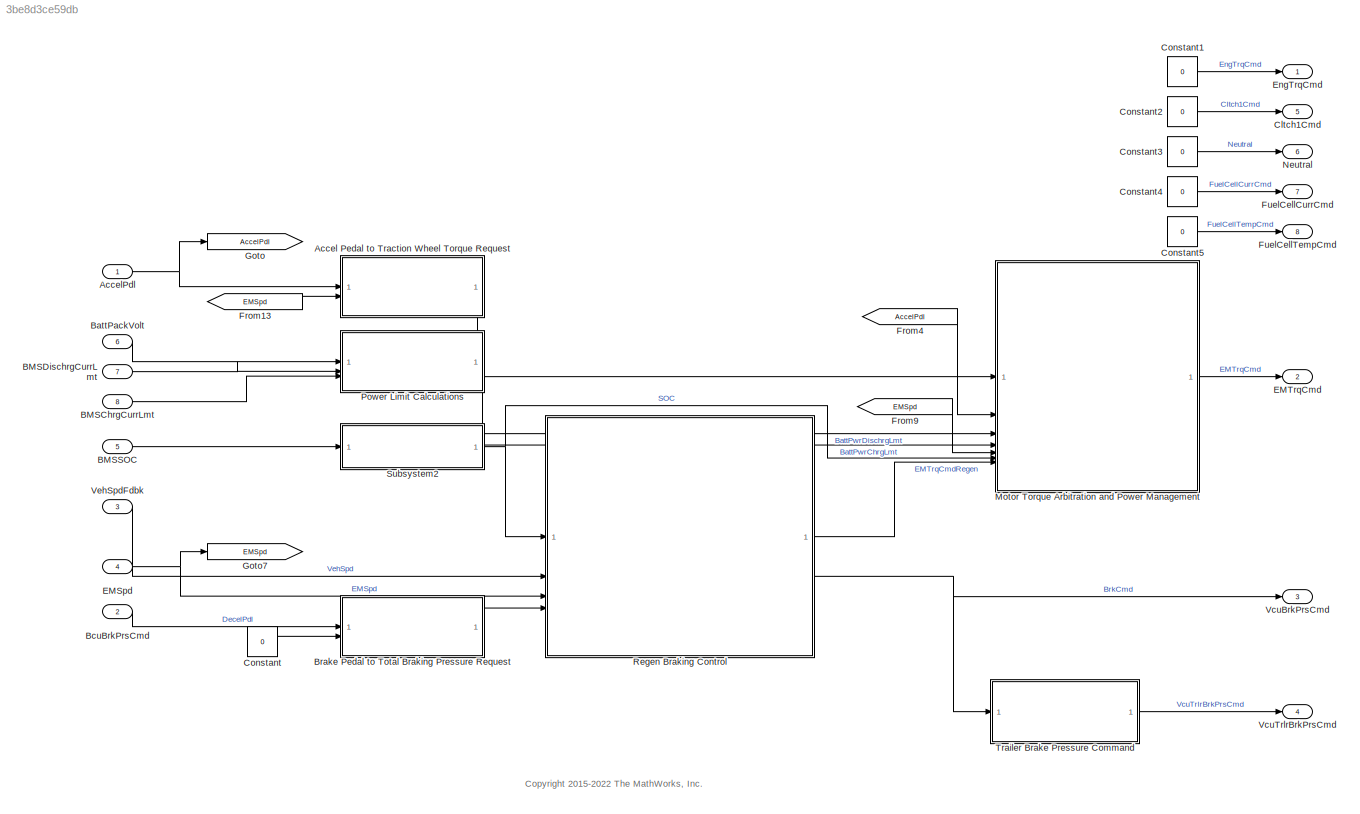
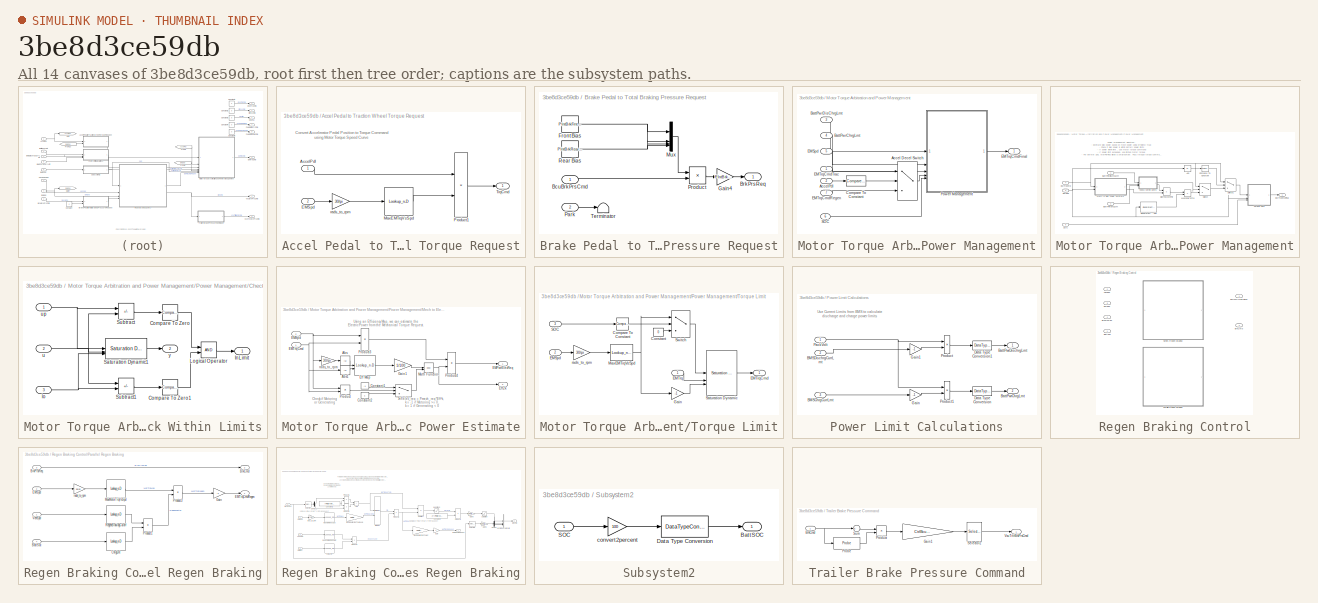
[diagram: thumbnail index - all 14 canvases of the model, root first then tree order]
MODEL slx_3be8d3ce59db
KIND model
BLOCK [SubSystem] Accel Pedal to Traction Wheel Torque Request
  InitFcn = [~]=autosharedicon('autolibinternalvvblock',gcb,0,'6');
BLOCK [Inport] Accel Pedal to Traction Wheel Torque Request/AccelPdl
BLOCK [Inport] Accel Pedal to Traction Wheel Torque Request/EMSpd
  Port = 2
BLOCK [Lookup_n-D] Accel Pedal to Traction Wheel Torque Request/MaxEMTrqVsSpd
  BreakpointsForDimension1 = PlntEM1Spd*30/pi
  ExtrapMethod = Clip
  InputPortMap = u0
  InternalRulePriority = Speed
  NumberOfTableDimensions = 1
  OutDataTypeStr = Inherit: Inherit from 'Table data'
  RndMeth = Simplest
  Table = PlntEM1Trq
  UseLastTableValue = on
BLOCK [Product] Accel Pedal to Traction Wheel Torque Request/Product1
BLOCK [Outport] Accel Pedal to Traction Wheel Torque Request/TrqCmd
  VectorParamsAs1DForOutWhenUnconnected = off
BLOCK [Gain] Accel Pedal to Traction Wheel Torque Request/rads_to_rpm
  Gain = 30/pi
BLOCK [Inport] AccelPdl
  OutDataTypeStr = double
  PortDimensions = 1
BLOCK [Inport] BMSChrgCurrLmt
  Port = 8
BLOCK [Inport] BMSDischrgCurrLmt
  Port = 7
BLOCK [Inport] BMSSOC
  Port = 5
BLOCK [Inport] BattPackVolt
  Port = 6
BLOCK [Inport] BcuBrkPrsCmd
  OutDataTypeStr = double
  Port = 2
  PortDimensions = 4
BLOCK [SubSystem] Brake Pedal to Total Braking Pressure Request
BLOCK [Inport] Brake Pedal to Total Braking Pressure Request/BcuBrkPrsCmd
BLOCK [Outport] Brake Pedal to Total Braking Pressure Request/BrkPrsReq
  VectorParamsAs1DForOutWhenUnconnected = off
BLOCK [Constant] Brake Pedal to Total Braking Pressure Request/Front Bias
  NameLocation = top
  Value = PlntBrkFrntBias
BLOCK [Gain] Brake Pedal to Total Braking Pressure Request/Gain4
  Gain = PlntBrkPrsFctr
BLOCK [Mux] Brake Pedal to Total Braking Pressure Request/Mux
  DisplayOption = bar
BLOCK [Inport] Brake Pedal to Total Braking Pressure Request/Park
  Port = 2
BLOCK [Product] Brake Pedal to Total Braking Pressure Request/Product
BLOCK [Constant] Brake Pedal to Total Braking Pressure Request/Rear Bias
  Value = PlntBrkRearBias
BLOCK [Terminator] Brake Pedal to Total Braking Pressure Request/Terminator
BLOCK [Outport] Cltch1Cmd
  OutDataTypeStr = double
  Port = 5
  PortDimensions = 1
  SamplingMode = Sample based
  SignalType = real
  VectorParamsAs1DForOutWhenUnconnected = off
BLOCK [Constant] Constant
  Value = 0
BLOCK [Constant] Constant1
  SampleTime = -1
  Value = 0
BLOCK [Constant] Constant2
  SampleTime = -1
  Value = 0
BLOCK [Constant] Constant3
  SampleTime = -1
  Value = 0
BLOCK [Constant] Constant4
  SampleTime = -1
  Value = 0
BLOCK [Constant] Constant5
  SampleTime = -1
  Value = 0
BLOCK [Inport] EMSpd
  OutDataTypeStr = double
  Port = 4
  PortDimensions = 1
BLOCK [Outport] EMTrqCmd
  OutDataTypeStr = double
  Port = 2
  PortDimensions = 1
  VectorParamsAs1DForOutWhenUnconnected = off
BLOCK [Outport] EngTrqCmd
  OutDataTypeStr = double
  PortDimensions = 1
  SamplingMode = Sample based
  SignalType = real
  VectorParamsAs1DForOutWhenUnconnected = off
BLOCK [From] From13
  GotoTag = EMSpd
BLOCK [From] From4
  GotoTag = AccelPdl
BLOCK [From] From9
  GotoTag = EMSpd
BLOCK [Outport] FuelCellCurrCmd
  OutDataTypeStr = double
  Port = 7
  PortDimensions = 1
BLOCK [Outport] FuelCellTempCmd
  OutDataTypeStr = double
  Port = 8
  PortDimensions = 1
BLOCK [Goto] Goto
  GotoTag = AccelPdl
BLOCK [Goto] Goto7
  GotoTag = EMSpd
BLOCK [SubSystem] Motor Torque Arbitration and Power Management
BLOCK [Switch] Motor Torque Arbitration and Power Management/Accel Decel Switch
  Criteria = u2 > Threshold
  InputSameDT = off
  SaturateOnIntegerOverflow = off
BLOCK [Inport] Motor Torque Arbitration and Power Management/AccelPdl
  Port = 2
BLOCK [Inport] Motor Torque Arbitration and Power Management/BattPwrChrgLmt 
  Port = 4
BLOCK [Inport] Motor Torque Arbitration and Power Management/BattPwrDisChrgLmt
  Port = 3
BLOCK [Reference] Motor Torque Arbitration and Power Management/Compare To Constant  REF=simulink/Logic and Bit
Operations/Compare
To Constant
  SourceBlock = simulink/Logic and Bit\nOperations/Compare\nTo Constant
  SourceType = Compare To Constant
BLOCK [Inport] Motor Torque Arbitration and Power Management/EMSpd
  Port = 5
BLOCK [Outport] Motor Torque Arbitration and Power Management/EMTrqCmdFinal
  VectorParamsAs1DForOutWhenUnconnected = off
BLOCK [Inport] Motor Torque Arbitration and Power Management/EMTrqCmdRegen
  Port = 7
BLOCK [Inport] Motor Torque Arbitration and Power Management/EMTrqCmdTrac
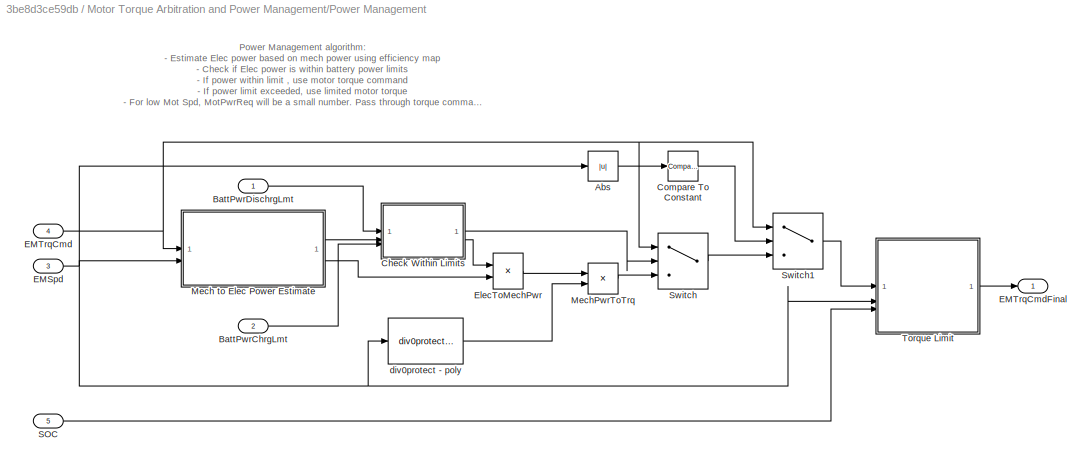
BLOCK [SubSystem] Motor Torque Arbitration and Power Management/Power Management
BLOCK [Abs] Motor Torque Arbitration and Power Management/Power Management/Abs
  SaturateOnIntegerOverflow = off
BLOCK [Inport] Motor Torque Arbitration and Power Management/Power Management/BattPwrChrgLmt
  Port = 2
BLOCK [Inport] Motor Torque Arbitration and Power Management/Power Management/BattPwrDischrgLmt
BLOCK [SubSystem] Motor Torque Arbitration and Power Management/Power Management/Check Within Limits
BLOCK [Reference] Motor Torque Arbitration and Power Management/Power Management/Check Within Limits/Compare To Zero  REF=simulink/Logic and Bit
Operations/Compare
To Zero
  SourceBlock = simulink/Logic and Bit\nOperations/Compare\nTo Zero
  SourceType = Compare To Zero
BLOCK [Reference] Motor Torque Arbitration and Power Management/Power Management/Check Within Limits/Compare To Zero1  REF=simulink/Logic and Bit
Operations/Compare
To Zero
  SourceBlock = simulink/Logic and Bit\nOperations/Compare\nTo Zero
  SourceType = Compare To Zero
BLOCK [Outport] Motor Torque Arbitration and Power Management/Power Management/Check Within Limits/InLimit
  VectorParamsAs1DForOutWhenUnconnected = off
BLOCK [Logic] Motor Torque Arbitration and Power Management/Power Management/Check Within Limits/Logical Operator
  AllPortsSameDT = off
  OutDataTypeStr = boolean
BLOCK [Reference] Motor Torque Arbitration and Power Management/Power Management/Check Within Limits/Saturation Dynamic1  REF=simulink/Discontinuities/Saturation
Dynamic
  SourceBlock = simulink/Discontinuities/Saturation\nDynamic
  SourceType = Saturation Dynamic
BLOCK [Sum] Motor Torque Arbitration and Power Management/Power Management/Check Within Limits/Subtract
  IconShape = rectangular
  Inputs = +-
BLOCK [Sum] Motor Torque Arbitration and Power Management/Power Management/Check Within Limits/Subtract1
  IconShape = rectangular
  Inputs = -+
BLOCK [Inport] Motor Torque Arbitration and Power Management/Power Management/Check Within Limits/lo
  Port = 3
BLOCK [Inport] Motor Torque Arbitration and Power Management/Power Management/Check Within Limits/u
  Port = 2
BLOCK [Inport] Motor Torque Arbitration and Power Management/Power Management/Check Within Limits/up
BLOCK [Outport] Motor Torque Arbitration and Power Management/Power Management/Check Within Limits/y
  Port = 2
  VectorParamsAs1DForOutWhenUnconnected = off
BLOCK [Reference] Motor Torque Arbitration and Power Management/Power Management/Compare To Constant  REF=simulink/Logic and Bit
Operations/Compare
To Constant
  SourceBlock = simulink/Logic and Bit\nOperations/Compare\nTo Constant
  SourceType = Compare To Constant
BLOCK [Inport] Motor Torque Arbitration and Power Management/Power Management/EMSpd
  Port = 3
BLOCK [Inport] Motor Torque Arbitration and Power Management/Power Management/EMTrqCmd
  Port = 4
BLOCK [Outport] Motor Torque Arbitration and Power Management/Power Management/EMTrqCmdFinal
  VectorParamsAs1DForOutWhenUnconnected = off
BLOCK [Product] Motor Torque Arbitration and Power Management/Power Management/ElecToMechPwr
  Inputs = */
BLOCK [SubSystem] Motor Torque Arbitration and Power Management/Power Management/Mech to Elec Power Estimate
BLOCK [Abs] Motor Torque Arbitration and Power Management/Power Management/Mech to Elec Power Estimate/Abs
  SaturateOnIntegerOverflow = off
BLOCK [Abs] Motor Torque Arbitration and Power Management/Power Management/Mech to Elec Power Estimate/Abs1
  SaturateOnIntegerOverflow = off
BLOCK [Constant] Motor Torque Arbitration and Power Management/Power Management/Mech to Elec Power Estimate/Constant1
  SampleTime = -1
  Value = -1
BLOCK [Constant] Motor Torque Arbitration and Power Management/Power Management/Mech to Elec Power Estimate/Constant2
  SampleTime = -1
BLOCK [Outport] Motor Torque Arbitration and Power Management/Power Management/Mech to Elec Power Estimate/EMPwrElecReq
  VectorParamsAs1DForOutWhenUnconnected = off
BLOCK [Inport] Motor Torque Arbitration and Power Management/Power Management/Mech to Elec Power Estimate/EMSpd
  Port = 2
BLOCK [Inport] Motor Torque Arbitration and Power Management/Power Management/Mech to Elec Power Estimate/EMTrqCmd
BLOCK [Lookup_n-D] Motor Torque Arbitration and Power Management/Power Management/Mech to Elec Power Estimate/Eff Map
  BreakpointsForDimension1 = PlntEM1SpdEff*30/pi
  BreakpointsForDimension2 = PlntEM1TrqEff
  ExtrapMethod = Clip
  InputPortMap = u0,u1
  InternalRulePriority = Speed
  OutDataTypeStr = Inherit: Inherit from 'Table data'
  RndMeth = Simplest
  Table = PlntEM1EffTbl
  UseLastTableValue = on
BLOCK [Outport] Motor Torque Arbitration and Power Management/Power Management/Mech to Elec Power Estimate/Eff2k
  Port = 2
  VectorParamsAs1DForOutWhenUnconnected = off
BLOCK [Gain] Motor Torque Arbitration and Power Management/Power Management/Mech to Elec Power Estimate/Gain1
  Gain = 1/100
BLOCK [Math] Motor Torque Arbitration and Power Management/Power Management/Mech to Elec Power Estimate/Math Function
  Operator = pow
  OutputSignalType = real
  SignedPower = on
BLOCK [Product] Motor Torque Arbitration and Power Management/Power Management/Mech to Elec Power Estimate/Product
BLOCK [Product] Motor Torque Arbitration and Power Management/Power Management/Mech to Elec Power Estimate/Product3
BLOCK [Product] Motor Torque Arbitration and Power Management/Power Management/Mech to Elec Power Estimate/Product4
BLOCK [Switch] Motor Torque Arbitration and Power Management/Power Management/Mech to Elec Power Estimate/Switch2
  InputSameDT = off
  SaturateOnIntegerOverflow = off
BLOCK [Gain] Motor Torque Arbitration and Power Management/Power Management/Mech to Elec Power Estimate/rads_to_rpm
  Gain = 30/pi
  NameLocation = top
BLOCK [Product] Motor Torque Arbitration and Power Management/Power Management/MechPwrToTrq
  Inputs = */
BLOCK [Inport] Motor Torque Arbitration and Power Management/Power Management/SOC
  Port = 5
BLOCK [Switch] Motor Torque Arbitration and Power Management/Power Management/Switch
  Criteria = u2 > Threshold
  InputSameDT = off
  SaturateOnIntegerOverflow = off
BLOCK [Switch] Motor Torque Arbitration and Power Management/Power Management/Switch1
  Criteria = u2 > Threshold
  InputSameDT = off
  SaturateOnIntegerOverflow = off
BLOCK [SubSystem] Motor Torque Arbitration and Power Management/Power Management/Torque Limit
BLOCK [Reference] Motor Torque Arbitration and Power Management/Power Management/Torque Limit/Compare To Constant  REF=simulink/Logic and Bit
Operations/Compare
To Constant
  SourceBlock = simulink/Logic and Bit\nOperations/Compare\nTo Constant
  SourceType = Compare To Constant
BLOCK [Constant] Motor Torque Arbitration and Power Management/Power Management/Torque Limit/Constant
  Value = 0
BLOCK [Inport] Motor Torque Arbitration and Power Management/Power Management/Torque Limit/EMSpd
  Port = 2
BLOCK [Inport] Motor Torque Arbitration and Power Management/Power Management/Torque Limit/EMTrq
BLOCK [Outport] Motor Torque Arbitration and Power Management/Power Management/Torque Limit/EMTrqCmd
  VectorParamsAs1DForOutWhenUnconnected = off
BLOCK [Gain] Motor Torque Arbitration and Power Management/Power Management/Torque Limit/Gain
  Gain = -1
BLOCK [Lookup_n-D] Motor Torque Arbitration and Power Management/Power Management/Torque Limit/MaxEMTrqVsSpd
  BreakpointsForDimension1 = PlntEM1Spd*30/pi
  ExtrapMethod = Clip
  InputPortMap = u0
  InternalRulePriority = Speed
  NumberOfTableDimensions = 1
  OutDataTypeStr = Inherit: Inherit from 'Table data'
  RndMeth = Simplest
  Table = PlntEM1Trq
  UseLastTableValue = on
BLOCK [Inport] Motor Torque Arbitration and Power Management/Power Management/Torque Limit/SOC
  Port = 3
BLOCK [Reference] Motor Torque Arbitration and Power Management/Power Management/Torque Limit/Saturation Dynamic  REF=simulink/Discontinuities/Saturation
Dynamic
  SourceBlock = simulink/Discontinuities/Saturation\nDynamic
  SourceType = Saturation Dynamic
BLOCK [Switch] Motor Torque Arbitration and Power Management/Power Management/Torque Limit/Switch
  Criteria = u2 > Threshold
  InputSameDT = off
  SaturateOnIntegerOverflow = off
BLOCK [Gain] Motor Torque Arbitration and Power Management/Power Management/Torque Limit/rads_to_rpm
  Gain = 30/pi
BLOCK [Reference] Motor Torque Arbitration and Power Management/Power Management/div0protect - poly  REF=autolibutils/div0protect - poly
  SourceBlock = autolibutils/div0protect - poly
BLOCK [Inport] Motor Torque Arbitration and Power Management/SOC
  Port = 6
BLOCK [Outport] Neutral
  OutDataTypeStr = double
  Port = 6
  PortDimensions = 1
  SamplingMode = Sample based
  SignalType = real
  VectorParamsAs1DForOutWhenUnconnected = off
BLOCK [SubSystem] Power Limit Calculations
BLOCK [Inport] Power Limit Calculations/BMSChrgCurrLmt
  Port = 3
BLOCK [Inport] Power Limit Calculations/BMSDischrgCurrLmt
  Port = 2
BLOCK [Outport] Power Limit Calculations/BattPwrChrgLmt
  Port = 2
  VectorParamsAs1DForOutWhenUnconnected = off
BLOCK [Outport] Power Limit Calculations/BattPwrDischrgLmt
  VectorParamsAs1DForOutWhenUnconnected = off
BLOCK [DataTypeConversion] Power Limit Calculations/Data Type Conversion
  RndMeth = Floor
  SaturateOnIntegerOverflow = off
BLOCK [DataTypeConversion] Power Limit Calculations/Data Type Conversion1
  RndMeth = Floor
  SaturateOnIntegerOverflow = off
BLOCK [Gain] Power Limit Calculations/Gain
  Gain = -1
BLOCK [Gain] Power Limit Calculations/Gain1
  Gain = -1
BLOCK [Inport] Power Limit Calculations/PackVolt
BLOCK [Product] Power Limit Calculations/Product
BLOCK [Product] Power Limit Calculations/Product1
BLOCK [SubSystem] Regen Braking Control
  LabelModeActiveChoice = Variant
  LoadFcn = [~]=autosharedicon('autolibinternalvvblock',gcb,0,'6');
  Variant = on
  VariantControl = (default)
  VariantControlMode = label
BLOCK [Outport] Regen Braking Control/ BrkCmd
  Port = 2
  VectorParamsAs1DForOutWhenUnconnected = off
BLOCK [Outport] Regen Braking Control/ EMTrqCmdRegen
  VectorParamsAs1DForOutWhenUnconnected = off
BLOCK [Inport] Regen Braking Control/BattSoc 
BLOCK [Inport] Regen Braking Control/BrkPrsReq 
  Port = 4
BLOCK [Inport] Regen Braking Control/EMSpd 
  Port = 3
BLOCK [SubSystem] Regen Braking Control/Parallel Regen Braking
  InitFcn = [~]=autosharedicon('autolibinternalvvblock',gcb,0,'6');
  VariantControl = (default)
BLOCK [Outport] Regen Braking Control/Parallel Regen Braking/ BrkCmd
  Port = 2
  VectorParamsAs1DForOutWhenUnconnected = off
BLOCK [Outport] Regen Braking Control/Parallel Regen Braking/ EMTrqCmdRegen
  VectorParamsAs1DForOutWhenUnconnected = off
BLOCK [Inport] Regen Braking Control/Parallel Regen Braking/BattSoc
  Port = 4
BLOCK [Inport] Regen Braking Control/Parallel Regen Braking/BrkPrsReq 
  Port = 3
BLOCK [Lookup_n-D] Regen Braking Control/Parallel Regen Braking/ChrgLmt
  BreakpointsForDimension1 = CtrlVcuEvSocBpt
  ExtrapMethod = Clip
  InputPortMap = u0
  InternalRulePriority = Speed
  NumberOfTableDimensions = 1
  RndMeth = Simplest
  Table = CtrlVcuEvChrgLmtBpt
  UseLastTableValue = on
BLOCK [Inport] Regen Braking Control/Parallel Regen Braking/EMSpd 
  Port = 2
BLOCK [Gain] Regen Braking Control/Parallel Regen Braking/Gain
  Gain = -1
BLOCK [Lookup_n-D] Regen Braking Control/Parallel Regen Braking/MaxMotorTrqVsSpd
  BreakpointsForDimension1 = PlntEM1Spd*30/pi
  ExtrapMethod = Clip
  InputPortMap = u0
  InternalRulePriority = Speed
  NumberOfTableDimensions = 1
  OutDataTypeStr = Inherit: Inherit from 'Table data'
  RndMeth = Simplest
  Table = PlntEM1Trq
  UseLastTableValue = on
BLOCK [Product] Regen Braking Control/Parallel Regen Braking/Product1
BLOCK [Product] Regen Braking Control/Parallel Regen Braking/Product3
BLOCK [Lookup_n-D] Regen Braking Control/Parallel Regen Braking/RegenBrakingCutoff
  BreakpointsForDimension1 = CtrlVcuEvRegenBrkSpdBpt
  ExtrapMethod = Clip
  InputPortMap = u0
  InternalRulePriority = Speed
  NumberOfTableDimensions = 1
  RndMeth = Simplest
  Table = CtrlVcuEvRegenBrkCutOff
  UseLastTableValue = on
BLOCK [Inport] Regen Braking Control/Parallel Regen Braking/VehSpd
BLOCK [Gain] Regen Braking Control/Parallel Regen Braking/rads_to_rpm
  Gain = 30/pi
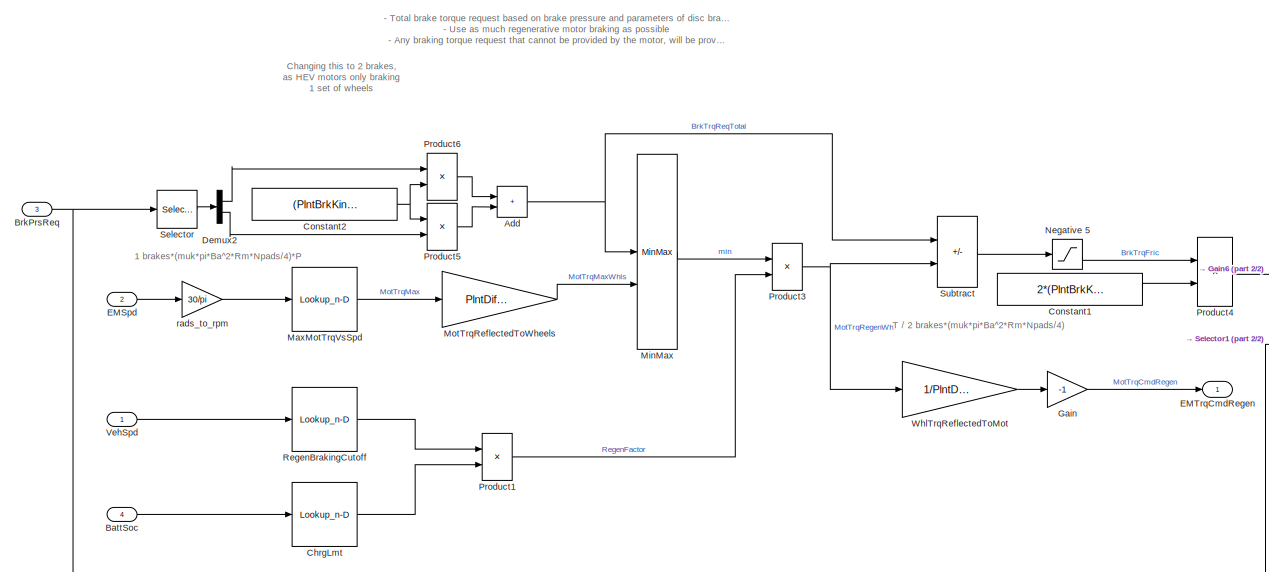
[diagram: Regen Braking Control/Series Regen Braking - part 1/2, most of the canvas]
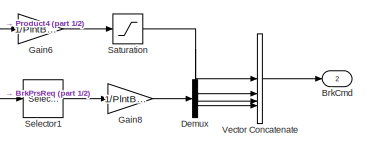
[diagram: Regen Braking Control/Series Regen Braking - part 2/2, middle right region]
BLOCK [SubSystem] Regen Braking Control/Series Regen Braking
  InitFcn = %[~]=autosharedicon('autolibinternalvvblock',gcb,0,'6');
  VariantControl = Variant
BLOCK [Outport] Regen Braking Control/Series Regen Braking/ BrkCmd
  Port = 2
  VectorParamsAs1DForOutWhenUnconnected = off
BLOCK [Outport] Regen Braking Control/Series Regen Braking/ EMTrqCmdRegen
  VectorParamsAs1DForOutWhenUnconnected = off
BLOCK [Sum] Regen Braking Control/Series Regen Braking/Add
  IconShape = rectangular
BLOCK [Inport] Regen Braking Control/Series Regen Braking/BattSoc
  Port = 4
BLOCK [Inport] Regen Braking Control/Series Regen Braking/BrkPrsReq 
  Port = 3
BLOCK [Lookup_n-D] Regen Braking Control/Series Regen Braking/ChrgLmt
  BreakpointsForDimension1 = CtrlVcuEvSocBpt
  ExtrapMethod = Clip
  InputPortMap = u0
  InternalRulePriority = Speed
  NumberOfTableDimensions = 1
  RndMeth = Simplest
  Table = CtrlVcuEvChrgLmtBpt
  UseLastTableValue = on
BLOCK [Constant] Regen Braking Control/Series Regen Braking/Constant1
  Value = 2*(PlntBrkKinFricCffFrnt*pi*PlntBrkActrBoreFrnt^2*PlntBrkPadMeanRadiusFrnt*PlntBrkNumPadsFrnt/4)
BLOCK [Constant] Regen Braking Control/Series Regen Braking/Constant2
  Value = (PlntBrkKinFricCffFrnt*pi*PlntBrkActrBoreFrnt^2*PlntBrkPadMeanRadiusFrnt*PlntBrkNumPadsFrnt/4)
BLOCK [Demux] Regen Braking Control/Series Regen Braking/Demux
  Outputs = 2
BLOCK [Demux] Regen Braking Control/Series Regen Braking/Demux2
  Outputs = 2
BLOCK [Inport] Regen Braking Control/Series Regen Braking/EMSpd 
  Port = 2
BLOCK [Gain] Regen Braking Control/Series Regen Braking/Gain
  Gain = -1
BLOCK [Gain] Regen Braking Control/Series Regen Braking/Gain6
  Gain = 1/PlntBrkPrsFctr
BLOCK [Gain] Regen Braking Control/Series Regen Braking/Gain8
  Gain = 1/PlntBrkPrsFctr
BLOCK [Lookup_n-D] Regen Braking Control/Series Regen Braking/MaxMotTrqVsSpd
  BreakpointsForDimension1 = PlntEM1Spd*30/pi
  ExtrapMethod = Clip
  InputPortMap = u0
  InternalRulePriority = Speed
  NumberOfTableDimensions = 1
  OutDataTypeStr = Inherit: Inherit from 'Table data'
  RndMeth = Simplest
  Table = PlntEM1Trq
  UseLastTableValue = on
BLOCK [MinMax] Regen Braking Control/Series Regen Braking/MinMax
  Inputs = 2
BLOCK [Gain] Regen Braking Control/Series Regen Braking/MotTrqReflectedToWheels
  Gain = PlntDiffrntlRatio
BLOCK [Saturate] Regen Braking Control/Series Regen Braking/Negative 5
  LowerLimit = 0
  UpperLimit = inf
BLOCK [Product] Regen Braking Control/Series Regen Braking/Product1
BLOCK [Product] Regen Braking Control/Series Regen Braking/Product3
BLOCK [Product] Regen Braking Control/Series Regen Braking/Product4
  Inputs = */
BLOCK [Product] Regen Braking Control/Series Regen Braking/Product5
BLOCK [Product] Regen Braking Control/Series Regen Braking/Product6
BLOCK [Lookup_n-D] Regen Braking Control/Series Regen Braking/RegenBrakingCutoff
  BreakpointsForDimension1 = CtrlVcuEvRegenBrkSpdBpt
  ExtrapMethod = Clip
  InputPortMap = u0
  InternalRulePriority = Speed
  NumberOfTableDimensions = 1
  RndMeth = Simplest
  Table = CtrlVcuEvRegenBrkCutOff
  UseLastTableValue = on
BLOCK [Saturate] Regen Braking Control/Series Regen Braking/Saturation
  LowerLimit = 0
  UpperLimit = 1
BLOCK [Selector] Regen Braking Control/Series Regen Braking/Selector
  IndexOptions = Index vector (dialog)
  Indices = [1 2]
  InputPortWidth = 4
  OutputSizes = 1
BLOCK [Selector] Regen Braking Control/Series Regen Braking/Selector1
  IndexOptions = Index vector (dialog)
  Indices = [3 4]
  InputPortWidth = 4
  OutputSizes = 1
BLOCK [Sum] Regen Braking Control/Series Regen Braking/Subtract
  IconShape = rectangular
  Inputs = +-
BLOCK [Concatenate] Regen Braking Control/Series Regen Braking/Vector Concatenate
  NumInputs = 4
BLOCK [Inport] Regen Braking Control/Series Regen Braking/VehSpd
BLOCK [Gain] Regen Braking Control/Series Regen Braking/WhlTrqReflectedToMot
  Gain = 1/PlntDiffrntlRatio
BLOCK [Gain] Regen Braking Control/Series Regen Braking/rads_to_rpm
  Gain = 30/pi
BLOCK [Inport] Regen Braking Control/VehSpd 
  Port = 2
BLOCK [SubSystem] Subsystem2
BLOCK [Outport] Subsystem2/BattSOC
BLOCK [DataTypeConversion] Subsystem2/Data Type Conversion
  RndMeth = Floor
  SaturateOnIntegerOverflow = off
BLOCK [Inport] Subsystem2/SOC
BLOCK [Gain] Subsystem2/convert2percent
  Gain = 100
BLOCK [SubSystem] Trailer Brake Pressure Command
BLOCK [Inport] Trailer Brake Pressure Command/BrkCmd
BLOCK [Gain] Trailer Brake Pressure Command/Gain1
  Gain = CtrlBcuTrlrBrkGain
BLOCK [Probe] Trailer Brake Pressure Command/Probe
  ProbeComplexSignal = off
  ProbeSampleTime = off
BLOCK [Product] Trailer Brake Pressure Command/Product
  Inputs = */
BLOCK [Selector] Trailer Brake Pressure Command/Selector2
  IndexOptions = Index vector (dialog)
  Indices = [1 1 1 1 1 1]
  InputPortWidth = 1
  OutputSizes = 1
BLOCK [Sum] Trailer Brake Pressure Command/Sum
  Inputs = +
BLOCK [Outport] Trailer Brake Pressure Command/VcuTrlrBrkPrsCmd
BLOCK [Outport] VcuBrkPrsCmd
  OutDataTypeStr = double
  Port = 3
  PortDimensions = 4
  VectorParamsAs1DForOutWhenUnconnected = off
BLOCK [Outport] VcuTrlrBrkPrsCmd
  Port = 4
  PortDimensions = 6
  VectorParamsAs1DForOutWhenUnconnected = off
BLOCK [Inport] VehSpdFdbk
  OutDataTypeStr = double
  Port = 3
  PortDimensions = 1
ANNOTATION (root): <copyright redacted>
ANNOTATION Accel Pedal to Traction Wheel Torque Request: Convert Accelerator Pedal Position to Torque Command using Motor Torque Speed Curve
ANNOTATION Motor Torque Arbitration and Power Management/Power Management: Power Management algorithm: - Estimate Elec power based on mech power using efficiency map - Check if Elec power is within battery power limits - If power within limit , use motor torque command - If power limit exceeded, use limited motor torque - For low Mot Spd, MotPwrReq will be a small number. Pass through torque command until Mot Spd > 2.
ANNOTATION Motor Torque Arbitration and Power Management/Power Management/Mech to Elec Power Estimate: Check if Motoring or Generating
ANNOTATION Motor Torque Arbitration and Power Management/Power Management/Mech to Elec Power Estimate: Pelec_req = Pmech_req*Eff^k, k = -1 if Motoring >= 0, k = 1 if Generating < 0
ANNOTATION Motor Torque Arbitration and Power Management/Power Management/Mech to Elec Power Estimate: Using an Efficiency Map, we can estimate the Electric Power from the Mechanical Torque Request.
ANNOTATION Power Limit Calculations: Use Current Limits from BMS to calculate discharge and charge power limits
ANNOTATION Regen Braking Control/Series Regen Braking: 1 brakes*(muk*pi*Ba^2*Rm*Npads/4)*P
ANNOTATION Regen Braking Control/Series Regen Braking: - Total brake torque request based on brake pressure and parameters of disc brakes - Use as much regenerative motor braking as possible - Any braking torque request that cannot be provided by the motor, will be provided by the friction brakes
ANNOTATION Regen Braking Control/Series Regen Braking: Changing this to 2 brakes, as HEV motors only braking 1 set of wheels
ANNOTATION Regen Braking Control/Series Regen Braking: T / 2 brakes*(muk*pi*Ba^2*Rm*Npads/4)
LINE Accel Pedal to Traction Wheel Torque Request/AccelPdl:1 -> Accel Pedal to Traction Wheel Torque Request/Product1:1
LINE Accel Pedal to Traction Wheel Torque Request/EMSpd:1 -> Accel Pedal to Traction Wheel Torque Request/rads_to_rpm:1
LINE Accel Pedal to Traction Wheel Torque Request/MaxEMTrqVsSpd:1 -> Accel Pedal to Traction Wheel Torque Request/Product1:2
LINE Accel Pedal to Traction Wheel Torque Request/Product1:1 -> Accel Pedal to Traction Wheel Torque Request/TrqCmd:1
LINE Accel Pedal to Traction Wheel Torque Request/rads_to_rpm:1 -> Accel Pedal to Traction Wheel Torque Request/MaxEMTrqVsSpd:1
LINE Accel Pedal to Traction Wheel Torque Request:1 -> Motor Torque Arbitration and Power Management:1
NET AccelPdl:1 -> Accel Pedal to Traction Wheel Torque Request:1, Goto:1
LINE BMSChrgCurrLmt:1 -> Power Limit Calculations:3
LINE BMSDischrgCurrLmt:1 -> Power Limit Calculations:2
LINE BMSSOC:1 -> Subsystem2:1
LINE BattPackVolt:1 -> Power Limit Calculations:1
LINE BcuBrkPrsCmd:1 -> Brake Pedal to Total Braking Pressure Request:1
LINE Brake Pedal to Total Braking Pressure Request/BcuBrkPrsCmd:1 -> Brake Pedal to Total Braking Pressure Request/Product:2
NET Brake Pedal to Total Braking Pressure Request/Front Bias:1 -> Brake Pedal to Total Braking Pressure Request/Mux:1, Brake Pedal to Total Braking Pressure Request/Mux:2
LINE Brake Pedal to Total Braking Pressure Request/Gain4:1 -> Brake Pedal to Total Braking Pressure Request/BrkPrsReq:1
LINE Brake Pedal to Total Braking Pressure Request/Mux:1 -> Brake Pedal to Total Braking Pressure Request/Product:1
LINE Brake Pedal to Total Braking Pressure Request/Park:1 -> Brake Pedal to Total Braking Pressure Request/Terminator:1
LINE Brake Pedal to Total Braking Pressure Request/Product:1 -> Brake Pedal to Total Braking Pressure Request/Gain4:1
NET Brake Pedal to Total Braking Pressure Request/Rear Bias:1 -> Brake Pedal to Total Braking Pressure Request/Mux:3, Brake Pedal to Total Braking Pressure Request/Mux:4
LINE Brake Pedal to Total Braking Pressure Request:1 -> Regen Braking Control:4
LINE Constant1:1 -> EngTrqCmd:1
LINE Constant2:1 -> Cltch1Cmd:1
LINE Constant3:1 -> Neutral:1
LINE Constant4:1 -> FuelCellCurrCmd:1
LINE Constant5:1 -> FuelCellTempCmd:1
LINE Constant:1 -> Brake Pedal to Total Braking Pressure Request:2
NET EMSpd:1 -> Goto7:1, Regen Braking Control:3
LINE From13:1 -> Accel Pedal to Traction Wheel Torque Request:2
LINE From4:1 -> Motor Torque Arbitration and Power Management:2
LINE From9:1 -> Motor Torque Arbitration and Power Management:5
LINE Motor Torque Arbitration and Power Management/Accel Decel Switch:1 -> Motor Torque Arbitration and Power Management/Power Management:4
LINE Motor Torque Arbitration and Power Management/AccelPdl:1 -> Motor Torque Arbitration and Power Management/Compare To Constant:1
LINE Motor Torque Arbitration and Power Management/BattPwrChrgLmt :1 -> Motor Torque Arbitration and Power Management/Power Management:2
LINE Motor Torque Arbitration and Power Management/BattPwrDisChrgLmt:1 -> Motor Torque Arbitration and Power Management/Power Management:1
LINE Motor Torque Arbitration and Power Management/Compare To Constant:1 -> Motor Torque Arbitration and Power Management/Accel Decel Switch:2
LINE Motor Torque Arbitration and Power Management/EMSpd:1 -> Motor Torque Arbitration and Power Management/Power Management:3
LINE Motor Torque Arbitration and Power Management/EMTrqCmdRegen:1 -> Motor Torque Arbitration and Power Management/Accel Decel Switch:3
LINE Motor Torque Arbitration and Power Management/EMTrqCmdTrac:1 -> Motor Torque Arbitration and Power Management/Accel Decel Switch:1
LINE Motor Torque Arbitration and Power Management/Power Management/Abs:1 -> Motor Torque Arbitration and Power Management/Power Management/Compare To Constant:1
LINE Motor Torque Arbitration and Power Management/Power Management/BattPwrChrgLmt:1 -> Motor Torque Arbitration and Power Management/Power Management/Check Within Limits:3
LINE Motor Torque Arbitration and Power Management/Power Management/BattPwrDischrgLmt:1 -> Motor Torque Arbitration and Power Management/Power Management/Check Within Limits:1
LINE Motor Torque Arbitration and Power Management/Power Management/Check Within Limits/Compare To Zero1:1 -> Motor Torque Arbitration and Power Management/Power Management/Check Within Limits/Logical Operator:2
LINE Motor Torque Arbitration and Power Management/Power Management/Check Within Limits/Compare To Zero:1 -> Motor Torque Arbitration and Power Management/Power Management/Check Within Limits/Logical Operator:1
LINE Motor Torque Arbitration and Power Management/Power Management/Check Within Limits/Logical Operator:1 -> Motor Torque Arbitration and Power Management/Power Management/Check Within Limits/InLimit:1
LINE Motor Torque Arbitration and Power Management/Power Management/Check Within Limits/Saturation Dynamic1:1 -> Motor Torque Arbitration and Power Management/Power Management/Check Within Limits/y:1
LINE Motor Torque Arbitration and Power Management/Power Management/Check Within Limits/Subtract1:1 -> Motor Torque Arbitration and Power Management/Power Management/Check Within Limits/Compare To Zero1:1
LINE Motor Torque Arbitration and Power Management/Power Management/Check Within Limits/Subtract:1 -> Motor Torque Arbitration and Power Management/Power Management/Check Within Limits/Compare To Zero:1
NET Motor Torque Arbitration and Power Management/Power Management/Check Within Limits/lo:1 -> Motor Torque Arbitration and Power Management/Power Management/Check Within Limits/Saturation Dynamic1:3, Motor Torque Arbitration and Power Management/Power Management/Check Within Limits/Subtract1:2
NET Motor Torque Arbitration and Power Management/Power Management/Check Within Limits/u:1 -> Motor Torque Arbitration and Power Management/Power Management/Check Within Limits/Saturation Dynamic1:2, Motor Torque Arbitration and Power Management/Power Management/Check Within Limits/Subtract1:1, Motor Torque Arbitration and Power Management/Power Management/Check Within Limits/Subtract:2
NET Motor Torque Arbitration and Power Management/Power Management/Check Within Limits/up:1 -> Motor Torque Arbitration and Power Management/Power Management/Check Within Limits/Saturation Dynamic1:1, Motor Torque Arbitration and Power Management/Power Management/Check Within Limits/Subtract:1
LINE Motor Torque Arbitration and Power Management/Power Management/Check Within Limits:1 -> Motor Torque Arbitration and Power Management/Power Management/Switch:2
LINE Motor Torque Arbitration and Power Management/Power Management/Check Within Limits:2 -> Motor Torque Arbitration and Power Management/Power Management/ElecToMechPwr:1
LINE Motor Torque Arbitration and Power Management/Power Management/Compare To Constant:1 -> Motor Torque Arbitration and Power Management/Power Management/Switch1:2
NET Motor Torque Arbitration and Power Management/Power Management/EMSpd:1 -> Motor Torque Arbitration and Power Management/Power Management/Abs:1, Motor Torque Arbitration and Power Management/Power Management/Mech to Elec Power Estimate:2, Motor Torque Arbitration and Power Management/Power Management/Torque Limit:2, Motor Torque Arbitration and Power Management/Power Management/div0protect - poly:1
NET Motor Torque Arbitration and Power Management/Power Management/EMTrqCmd:1 -> Motor Torque Arbitration and Power Management/Power Management/Mech to Elec Power Estimate:1, Motor Torque Arbitration and Power Management/Power Management/Switch1:1, Motor Torque Arbitration and Power Management/Power Management/Switch:1
LINE Motor Torque Arbitration and Power Management/Power Management/ElecToMechPwr:1 -> Motor Torque Arbitration and Power Management/Power Management/MechPwrToTrq:1
LINE Motor Torque Arbitration and Power Management/Power Management/Mech to Elec Power Estimate/Abs1:1 -> Motor Torque Arbitration and Power Management/Power Management/Mech to Elec Power Estimate/Eff Map:2
LINE Motor Torque Arbitration and Power Management/Power Management/Mech to Elec Power Estimate/Abs:1 -> Motor Torque Arbitration and Power Management/Power Management/Mech to Elec Power Estimate/Eff Map:1
LINE Motor Torque Arbitration and Power Management/Power Management/Mech to Elec Power Estimate/Constant1:1 -> Motor Torque Arbitration and Power Management/Power Management/Mech to Elec Power Estimate/Switch2:1
LINE Motor Torque Arbitration and Power Management/Power Management/Mech to Elec Power Estimate/Constant2:1 -> Motor Torque Arbitration and Power Management/Power Management/Mech to Elec Power Estimate/Switch2:3
NET Motor Torque Arbitration and Power Management/Power Management/Mech to Elec Power Estimate/EMSpd:1 -> Motor Torque Arbitration and Power Management/Power Management/Mech to Elec Power Estimate/Product3:1, Motor Torque Arbitration and Power Management/Power Management/Mech to Elec Power Estimate/Product:1, Motor Torque Arbitration and Power Management/Power Management/Mech to Elec Power Estimate/rads_to_rpm:1
NET Motor Torque Arbitration and Power Management/Power Management/Mech to Elec Power Estimate/EMTrqCmd:1 -> Motor Torque Arbitration and Power Management/Power Management/Mech to Elec Power Estimate/Abs1:1, Motor Torque Arbitration and Power Management/Power Management/Mech to Elec Power Estimate/Product3:2, Motor Torque Arbitration and Power Management/Power Management/Mech to Elec Power Estimate/Product:2
LINE Motor Torque Arbitration and Power Management/Power Management/Mech to Elec Power Estimate/Eff Map:1 -> Motor Torque Arbitration and Power Management/Power Management/Mech to Elec Power Estimate/Gain1:1
LINE Motor Torque Arbitration and Power Management/Power Management/Mech to Elec Power Estimate/Gain1:1 -> Motor Torque Arbitration and Power Management/Power Management/Mech to Elec Power Estimate/Math Function:1
NET Motor Torque Arbitration and Power Management/Power Management/Mech to Elec Power Estimate/Math Function:1 -> Motor Torque Arbitration and Power Management/Power Management/Mech to Elec Power Estimate/Eff2k:1, Motor Torque Arbitration and Power Management/Power Management/Mech to Elec Power Estimate/Product4:2
LINE Motor Torque Arbitration and Power Management/Power Management/Mech to Elec Power Estimate/Product3:1 -> Motor Torque Arbitration and Power Management/Power Management/Mech to Elec Power Estimate/Product4:1
LINE Motor Torque Arbitration and Power Management/Power Management/Mech to Elec Power Estimate/Product4:1 -> Motor Torque Arbitration and Power Management/Power Management/Mech to Elec Power Estimate/EMPwrElecReq:1
LINE Motor Torque Arbitration and Power Management/Power Management/Mech to Elec Power Estimate/Product:1 -> Motor Torque Arbitration and Power Management/Power Management/Mech to Elec Power Estimate/Switch2:2
LINE Motor Torque Arbitration and Power Management/Power Management/Mech to Elec Power Estimate/Switch2:1 -> Motor Torque Arbitration and Power Management/Power Management/Mech to Elec Power Estimate/Math Function:2
LINE Motor Torque Arbitration and Power Management/Power Management/Mech to Elec Power Estimate/rads_to_rpm:1 -> Motor Torque Arbitration and Power Management/Power Management/Mech to Elec Power Estimate/Abs:1
LINE Motor Torque Arbitration and Power Management/Power Management/Mech to Elec Power Estimate:1 -> Motor Torque Arbitration and Power Management/Power Management/Check Within Limits:2
LINE Motor Torque Arbitration and Power Management/Power Management/Mech to Elec Power Estimate:2 -> Motor Torque Arbitration and Power Management/Power Management/ElecToMechPwr:2
LINE Motor Torque Arbitration and Power Management/Power Management/MechPwrToTrq:1 -> Motor Torque Arbitration and Power Management/Power Management/Switch:3
LINE Motor Torque Arbitration and Power Management/Power Management/SOC:1 -> Motor Torque Arbitration and Power Management/Power Management/Torque Limit:3
LINE Motor Torque Arbitration and Power Management/Power Management/Switch1:1 -> Motor Torque Arbitration and Power Management/Power Management/Torque Limit:1
LINE Motor Torque Arbitration and Power Management/Power Management/Switch:1 -> Motor Torque Arbitration and Power Management/Power Management/Switch1:3
LINE Motor Torque Arbitration and Power Management/Power Management/Torque Limit/Compare To Constant:1 -> Motor Torque Arbitration and Power Management/Power Management/Torque Limit/Switch:2
LINE Motor Torque Arbitration and Power Management/Power Management/Torque Limit/Constant:1 -> Motor Torque Arbitration and Power Management/Power Management/Torque Limit/Switch:3
LINE Motor Torque Arbitration and Power Management/Power Management/Torque Limit/EMSpd:1 -> Motor Torque Arbitration and Power Management/Power Management/Torque Limit/rads_to_rpm:1
LINE Motor Torque Arbitration and Power Management/Power Management/Torque Limit/EMTrq:1 -> Motor Torque Arbitration and Power Management/Power Management/Torque Limit/Saturation Dynamic:2
LINE Motor Torque Arbitration and Power Management/Power Management/Torque Limit/Gain:1 -> Motor Torque Arbitration and Power Management/Power Management/Torque Limit/Saturation Dynamic:3
NET Motor Torque Arbitration and Power Management/Power Management/Torque Limit/MaxEMTrqVsSpd:1 -> Motor Torque Arbitration and Power Management/Power Management/Torque Limit/Gain:1, Motor Torque Arbitration and Power Management/Power Management/Torque Limit/Switch:1
LINE Motor Torque Arbitration and Power Management/Power Management/Torque Limit/SOC:1 -> Motor Torque Arbitration and Power Management/Power Management/Torque Limit/Compare To Constant:1
LINE Motor Torque Arbitration and Power Management/Power Management/Torque Limit/Saturation Dynamic:1 -> Motor Torque Arbitration and Power Management/Power Management/Torque Limit/EMTrqCmd:1
LINE Motor Torque Arbitration and Power Management/Power Management/Torque Limit/Switch:1 -> Motor Torque Arbitration and Power Management/Power Management/Torque Limit/Saturation Dynamic:1
LINE Motor Torque Arbitration and Power Management/Power Management/Torque Limit/rads_to_rpm:1 -> Motor Torque Arbitration and Power Management/Power Management/Torque Limit/MaxEMTrqVsSpd:1
LINE Motor Torque Arbitration and Power Management/Power Management/Torque Limit:1 -> Motor Torque Arbitration and Power Management/Power Management/EMTrqCmdFinal:1
LINE Motor Torque Arbitration and Power Management/Power Management/div0protect - poly:1 -> Motor Torque Arbitration and Power Management/Power Management/MechPwrToTrq:2
LINE Motor Torque Arbitration and Power Management/Power Management:1 -> Motor Torque Arbitration and Power Management/EMTrqCmdFinal:1
LINE Motor Torque Arbitration and Power Management/SOC:1 -> Motor Torque Arbitration and Power Management/Power Management:5
LINE Motor Torque Arbitration and Power Management:1 -> EMTrqCmd:1
LINE Power Limit Calculations/BMSChrgCurrLmt:1 -> Power Limit Calculations/Gain:1
LINE Power Limit Calculations/BMSDischrgCurrLmt:1 -> Power Limit Calculations/Gain1:1
LINE Power Limit Calculations/Data Type Conversion1:1 -> Power Limit Calculations/BattPwrDischrgLmt:1
LINE Power Limit Calculations/Data Type Conversion:1 -> Power Limit Calculations/BattPwrChrgLmt:1
LINE Power Limit Calculations/Gain1:1 -> Power Limit Calculations/Product:2
LINE Power Limit Calculations/Gain:1 -> Power Limit Calculations/Product1:2
NET Power Limit Calculations/PackVolt:1 -> Power Limit Calculations/Product1:1, Power Limit Calculations/Product:1
LINE Power Limit Calculations/Product1:1 -> Power Limit Calculations/Data Type Conversion:1
LINE Power Limit Calculations/Product:1 -> Power Limit Calculations/Data Type Conversion1:1
LINE Power Limit Calculations:1 -> Motor Torque Arbitration and Power Management:3
LINE Power Limit Calculations:2 -> Motor Torque Arbitration and Power Management:4
LINE Regen Braking Control/Parallel Regen Braking/BattSoc:1 -> Regen Braking Control/Parallel Regen Braking/ChrgLmt:1
LINE Regen Braking Control/Parallel Regen Braking/BrkPrsReq :1 -> Regen Braking Control/Parallel Regen Braking/ BrkCmd:1
LINE Regen Braking Control/Parallel Regen Braking/ChrgLmt:1 -> Regen Braking Control/Parallel Regen Braking/Product1:2
LINE Regen Braking Control/Parallel Regen Braking/EMSpd :1 -> Regen Braking Control/Parallel Regen Braking/rads_to_rpm:1
LINE Regen Braking Control/Parallel Regen Braking/Gain:1 -> Regen Braking Control/Parallel Regen Braking/ EMTrqCmdRegen:1
LINE Regen Braking Control/Parallel Regen Braking/MaxMotorTrqVsSpd:1 -> Regen Braking Control/Parallel Regen Braking/Product3:1
LINE Regen Braking Control/Parallel Regen Braking/Product1:1 -> Regen Braking Control/Parallel Regen Braking/Product3:2
LINE Regen Braking Control/Parallel Regen Braking/Product3:1 -> Regen Braking Control/Parallel Regen Braking/Gain:1
LINE Regen Braking Control/Parallel Regen Braking/RegenBrakingCutoff:1 -> Regen Braking Control/Parallel Regen Braking/Product1:1
LINE Regen Braking Control/Parallel Regen Braking/VehSpd:1 -> Regen Braking Control/Parallel Regen Braking/RegenBrakingCutoff:1
LINE Regen Braking Control/Parallel Regen Braking/rads_to_rpm:1 -> Regen Braking Control/Parallel Regen Braking/MaxMotorTrqVsSpd:1
NET Regen Braking Control/Series Regen Braking/Add:1 -> Regen Braking Control/Series Regen Braking/MinMax:1, Regen Braking Control/Series Regen Braking/Subtract:1
LINE Regen Braking Control/Series Regen Braking/BattSoc:1 -> Regen Braking Control/Series Regen Braking/ChrgLmt:1
NET Regen Braking Control/Series Regen Braking/BrkPrsReq :1 -> Regen Braking Control/Series Regen Braking/Selector1:1, Regen Braking Control/Series Regen Braking/Selector:1
LINE Regen Braking Control/Series Regen Braking/ChrgLmt:1 -> Regen Braking Control/Series Regen Braking/Product1:2
LINE Regen Braking Control/Series Regen Braking/Constant1:1 -> Regen Braking Control/Series Regen Braking/Product4:2
NET Regen Braking Control/Series Regen Braking/Constant2:1 -> Regen Braking Control/Series Regen Braking/Product5:1, Regen Braking Control/Series Regen Braking/Product6:2
LINE Regen Braking Control/Series Regen Braking/Demux2:1 -> Regen Braking Control/Series Regen Braking/Product6:1
LINE Regen Braking Control/Series Regen Braking/Demux2:2 -> Regen Braking Control/Series Regen Braking/Product5:2
LINE Regen Braking Control/Series Regen Braking/Demux:1 -> Regen Braking Control/Series Regen Braking/Vector Concatenate:3
LINE Regen Braking Control/Series Regen Braking/Demux:2 -> Regen Braking Control/Series Regen Braking/Vector Concatenate:4
LINE Regen Braking Control/Series Regen Braking/EMSpd :1 -> Regen Braking Control/Series Regen Braking/rads_to_rpm:1
LINE Regen Braking Control/Series Regen Braking/Gain6:1 -> Regen Braking Control/Series Regen Braking/Saturation:1
LINE Regen Braking Control/Series Regen Braking/Gain8:1 -> Regen Braking Control/Series Regen Braking/Demux:1
LINE Regen Braking Control/Series Regen Braking/Gain:1 -> Regen Braking Control/Series Regen Braking/ EMTrqCmdRegen:1
LINE Regen Braking Control/Series Regen Braking/MaxMotTrqVsSpd:1 -> Regen Braking Control/Series Regen Braking/MotTrqReflectedToWheels:1
LINE Regen Braking Control/Series Regen Braking/MinMax:1 -> Regen Braking Control/Series Regen Braking/Product3:1
LINE Regen Braking Control/Series Regen Braking/MotTrqReflectedToWheels:1 -> Regen Braking Control/Series Regen Braking/MinMax:2
LINE Regen Braking Control/Series Regen Braking/Negative 5:1 -> Regen Braking Control/Series Regen Braking/Product4:1
LINE Regen Braking Control/Series Regen Braking/Product1:1 -> Regen Braking Control/Series Regen Braking/Product3:2
NET Regen Braking Control/Series Regen Braking/Product3:1 -> Regen Braking Control/Series Regen Braking/Subtract:2, Regen Braking Control/Series Regen Braking/WhlTrqReflectedToMot:1
LINE Regen Braking Control/Series Regen Braking/Product4:1 -> Regen Braking Control/Series Regen Braking/Gain6:1
LINE Regen Braking Control/Series Regen Braking/Product5:1 -> Regen Braking Control/Series Regen Braking/Add:2
LINE Regen Braking Control/Series Regen Braking/Product6:1 -> Regen Braking Control/Series Regen Braking/Add:1
LINE Regen Braking Control/Series Regen Braking/RegenBrakingCutoff:1 -> Regen Braking Control/Series Regen Braking/Product1:1
NET Regen Braking Control/Series Regen Braking/Saturation:1 -> Regen Braking Control/Series Regen Braking/Vector Concatenate:1, Regen Braking Control/Series Regen Braking/Vector Concatenate:2
LINE Regen Braking Control/Series Regen Braking/Selector1:1 -> Regen Braking Control/Series Regen Braking/Gain8:1
LINE Regen Braking Control/Series Regen Braking/Selector:1 -> Regen Braking Control/Series Regen Braking/Demux2:1
LINE Regen Braking Control/Series Regen Braking/Subtract:1 -> Regen Braking Control/Series Regen Braking/Negative 5:1
LINE Regen Braking Control/Series Regen Braking/Vector Concatenate:1 -> Regen Braking Control/Series Regen Braking/ BrkCmd:1
LINE Regen Braking Control/Series Regen Braking/VehSpd:1 -> Regen Braking Control/Series Regen Braking/RegenBrakingCutoff:1
LINE Regen Braking Control/Series Regen Braking/WhlTrqReflectedToMot:1 -> Regen Braking Control/Series Regen Braking/Gain:1
LINE Regen Braking Control/Series Regen Braking/rads_to_rpm:1 -> Regen Braking Control/Series Regen Braking/MaxMotTrqVsSpd:1
LINE Regen Braking Control:1 -> Motor Torque Arbitration and Power Management:7
NET Regen Braking Control:2 -> Trailer Brake Pressure Command:1, VcuBrkPrsCmd:1
LINE Subsystem2/Data Type Conversion:1 -> Subsystem2/BattSOC:1
LINE Subsystem2/SOC:1 -> Subsystem2/convert2percent:1
LINE Subsystem2/convert2percent:1 -> Subsystem2/Data Type Conversion:1
NET Subsystem2:1 -> Motor Torque Arbitration and Power Management:6, Regen Braking Control:1
NET Trailer Brake Pressure Command/BrkCmd:1 -> Trailer Brake Pressure Command/Probe:1, Trailer Brake Pressure Command/Sum:1
LINE Trailer Brake Pressure Command/Gain1:1 -> Trailer Brake Pressure Command/Selector2:1
LINE Trailer Brake Pressure Command/Probe:1 -> Trailer Brake Pressure Command/Product:2
LINE Trailer Brake Pressure Command/Product:1 -> Trailer Brake Pressure Command/Gain1:1
LINE Trailer Brake Pressure Command/Selector2:1 -> Trailer Brake Pressure Command/VcuTrlrBrkPrsCmd:1
LINE Trailer Brake Pressure Command/Sum:1 -> Trailer Brake Pressure Command/Product:1
LINE Trailer Brake Pressure Command:1 -> VcuTrlrBrkPrsCmd:1
LINE VehSpdFdbk:1 -> Regen Braking Control:2
note: NET lines group one-source signal fan-out (src -> all destinations, sorted); 1:1 wires keep LINE
